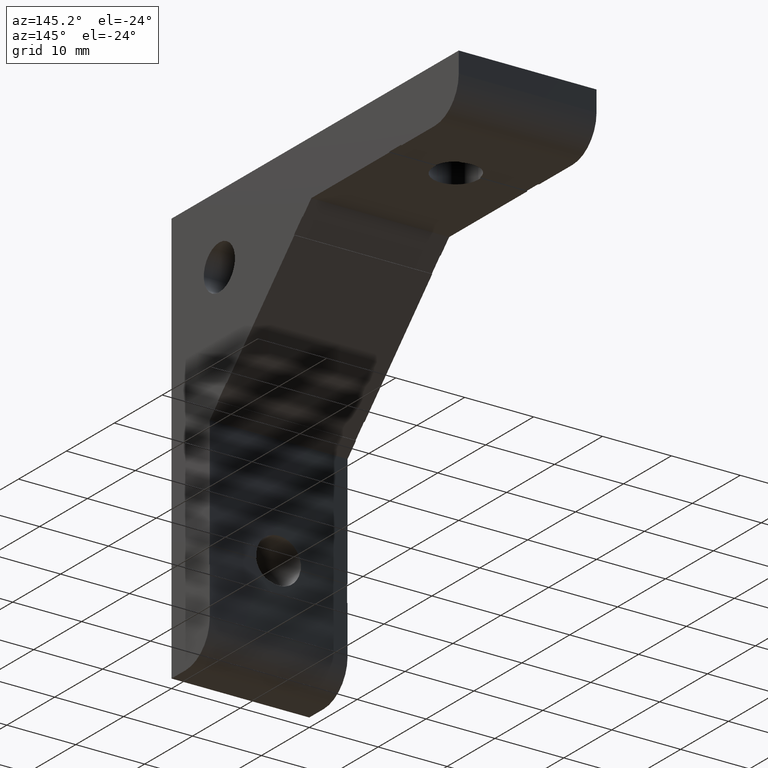
[diagram: clean part render]
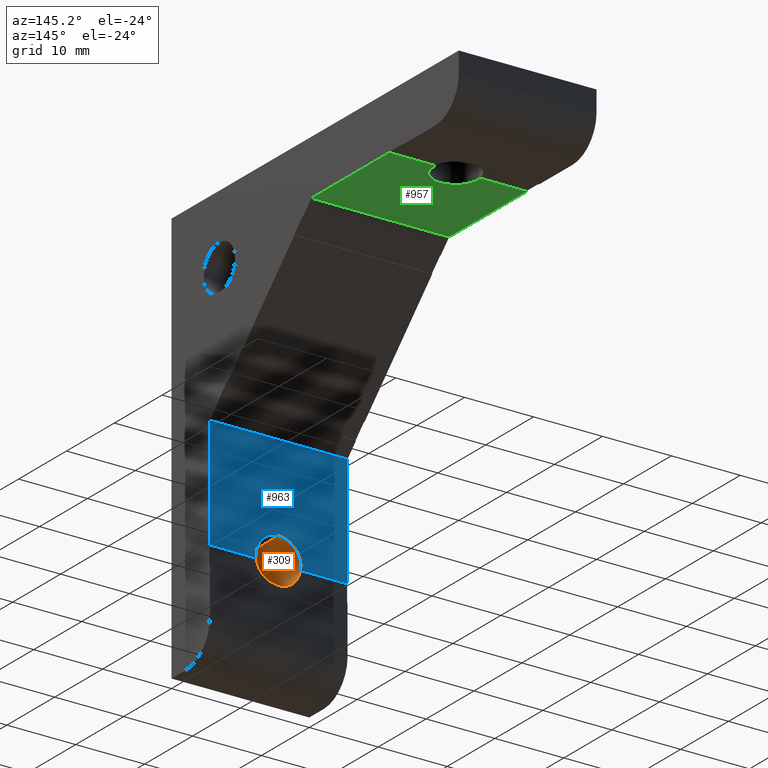
[diagram: same view with three faces highlighted in distinct colors, each labeled with its STEP entity id]
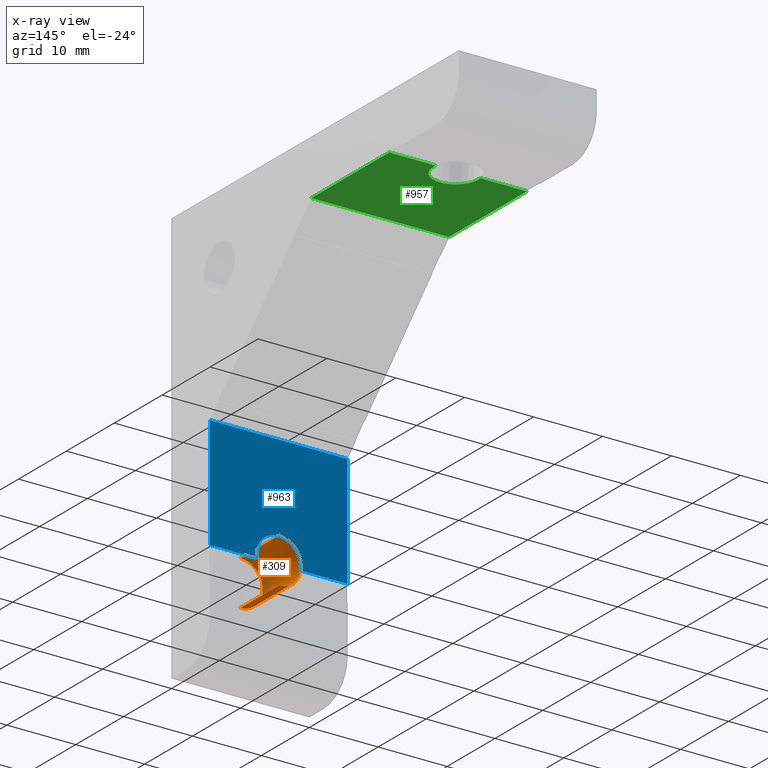
[diagram: x-ray of the same camera — body ghosted, the three highlighted faces saturated]
A machine part, auxiliary view with three faces highlighted in distinct colors.
The next image is the same camera in x-ray (body ghosted, the three faces saturated) — at least one of them is partly hidden behind the body in this view.
Their STEP definitions:

[orange] entity #309 — the highlighted cylindrical surface (edge-blend (fillet) strip) has radius 3.25 mm, axis along (-0, 1, 0).
#3 = EDGE_CURVE ( 'NONE', #907, #911, #822, .T. ) ;
#4 = EDGE_CURVE ( 'NONE', #946, #911, #824, .T. ) ;
#5 = EDGE_CURVE ( 'NONE', #926, #870, #826, .T. ) ;
#6 = EDGE_CURVE ( 'NONE', #870, #946, #825, .T. ) ;
#110 = ORIENTED_EDGE ( 'NONE', *, *, #492, .T. ) ;
#124 = ORIENTED_EDGE ( 'NONE', *, *, #954, .T. ) ;
#125 = ORIENTED_EDGE ( 'NONE', *, *, #953, .T. ) ;
#126 = ORIENTED_EDGE ( 'NONE', *, *, #5, .T. ) ;
#127 = ORIENTED_EDGE ( 'NONE', *, *, #952, .T. ) ;
#128 = ORIENTED_EDGE ( 'NONE', *, *, #4, .T. ) ;
#129 = ORIENTED_EDGE ( 'NONE', *, *, #3, .F. ) ;
#131 = ORIENTED_EDGE ( 'NONE', *, *, #6, .T. ) ;
#148 = CARTESIAN_POINT ( 'NONE',  ( 6.788691855308848700, 7.899999999999999500, -45.49999999984024200 ) ) ;
#149 = CARTESIAN_POINT ( 'NONE',  ( 10.00000000000000000, 8.000000000000000000, -48.24999999999999300 ) ) ;
#155 = CARTESIAN_POINT ( 'NONE',  ( 10.00000000000000000, 0.0000000000000000000, -48.24999999999999300 ) ) ;
#167 = CARTESIAN_POINT ( 'NONE',  ( 10.00000000000000000, 0.0000000000000000000, -41.75000000000000000 ) ) ;
#171 = CARTESIAN_POINT ( 'NONE',  ( 10.00000000000000000, 8.000000000000000000, -41.75000000000000000 ) ) ;
#173 = CARTESIAN_POINT ( 'NONE',  ( 8.750000000434340600, 8.000000000000000000, -48.00000000018096100 ) ) ;
#186 = CARTESIAN_POINT ( 'NONE',  ( 8.750000000434340600, 7.899999999999999500, -48.00000000018096100 ) ) ;
#206 = CARTESIAN_POINT ( 'NONE',  ( 6.788691855308848700, 8.000000000000000000, -45.49999999984024200 ) ) ;
#213 = CARTESIAN_POINT ( 'NONE',  ( 10.00000000000000000, 0.0000000000000000000, -48.24999999999999300 ) ) ;
#214 = DIRECTION ( 'NONE',  ( -0.0000000000000000000, 1.000000000000000000, 0.0000000000000000000 ) ) ;
#215 = CARTESIAN_POINT ( 'NONE',  ( 8.750000000868665100, 3.999999999999999100, -48.00000000036192200 ) ) ;
#216 = DIRECTION ( 'NONE',  ( -0.0000000000000000000, -1.000000000000000000, -0.0000000000000000000 ) ) ;
#217 = CARTESIAN_POINT ( 'NONE',  ( 10.00000000000000000, 8.000000000000000000, -45.00000000000000000 ) ) ;
#218 = DIRECTION ( 'NONE',  ( -0.0000000000000000000, 1.000000000000000000, 0.0000000000000000000 ) ) ;
#219 = DIRECTION ( 'NONE',  ( 0.0000000000000000000, 0.0000000000000000000, 1.000000000000000000 ) ) ;
#309 = ADVANCED_FACE ( 'NONE', ( #1283 ), #1284, .F. ) ;
#416 = CARTESIAN_POINT ( 'NONE',  ( 10.00000000000000000, 0.0000000000000000000, -45.00000000000000000 ) ) ;
#417 = DIRECTION ( 'NONE',  ( 0.0000000000000000000, -1.000000000000000000, -0.0000000000000000000 ) ) ;
#418 = DIRECTION ( 'NONE',  ( 0.0000000000000000000, 0.0000000000000000000, 1.000000000000000000 ) ) ;
#492 = EDGE_CURVE ( 'NONE', #907, #895, #1327, .T. ) ;
#513 = AXIS2_PLACEMENT_3D ( 'NONE', #1274, #1273, #1266 ) ;
#514 = AXIS2_PLACEMENT_3D ( 'NONE', #1251, #1253, #1254 ) ;
#517 = AXIS2_PLACEMENT_3D ( 'NONE', #837, #840, #838 ) ;
#545 = AXIS2_PLACEMENT_3D ( 'NONE', #416, #417, #418 ) ;
#640 = AXIS2_PLACEMENT_3D ( 'NONE', #217, #218, #219 ) ;
#780 = EDGE_LOOP ( 'NONE', ( #110, #127, #124, #125, #126, #131, #128, #129 ) ) ;
#822 = LINE ( 'NONE', #1265, #823 ) ;
#823 = VECTOR ( 'NONE', #1263, 1000.000000000000000 ) ;
#824 = CIRCLE ( 'NONE', #513, 3.249999999999996000 ) ;
#825 = LINE ( 'NONE', #1256, #827 ) ;
#826 = CIRCLE ( 'NONE', #514, 3.249999999999996000 ) ;
#827 = VECTOR ( 'NONE', #1258, 1000.000000000000000 ) ;
#837 = CARTESIAN_POINT ( 'NONE',  ( 10.00000000000000000, 0.0000000000000000000, -45.00000000000000000 ) ) ;
#838 = DIRECTION ( 'NONE',  ( 0.0000000000000000000, 0.0000000000000000000, 1.000000000000000000 ) ) ;
#840 = DIRECTION ( 'NONE',  ( -0.0000000000000000000, 1.000000000000000000, 0.0000000000000000000 ) ) ;
#870 = VERTEX_POINT ( 'NONE', #148 ) ;
#871 = VERTEX_POINT ( 'NONE', #149 ) ;
#895 = VERTEX_POINT ( 'NONE', #155 ) ;
#907 = VERTEX_POINT ( 'NONE', #167 ) ;
#911 = VERTEX_POINT ( 'NONE', #171 ) ;
#913 = VERTEX_POINT ( 'NONE', #173 ) ;
#926 = VERTEX_POINT ( 'NONE', #186 ) ;
#946 = VERTEX_POINT ( 'NONE', #206 ) ;
#952 = EDGE_CURVE ( 'NONE', #895, #871, #1077, .T. ) ;
#953 = EDGE_CURVE ( 'NONE', #913, #926, #1079, .T. ) ;
#954 = EDGE_CURVE ( 'NONE', #871, #913, #1082, .T. ) ;
#1077 = LINE ( 'NONE', #213, #1078 ) ;
#1078 = VECTOR ( 'NONE', #214, 1000.000000000000000 ) ;
#1079 = LINE ( 'NONE', #215, #1080 ) ;
#1080 = VECTOR ( 'NONE', #216, 1000.000000000000000 ) ;
#1082 = CIRCLE ( 'NONE', #640, 3.249999999999996000 ) ;
#1251 = CARTESIAN_POINT ( 'NONE',  ( 10.00000000000000000, 7.899999999999999500, -45.00000000000000000 ) ) ;
#1253 = DIRECTION ( 'NONE',  ( -0.0000000000000000000, 1.000000000000000000, 0.0000000000000000000 ) ) ;
#1254 = DIRECTION ( 'NONE',  ( 0.0000000000000000000, 0.0000000000000000000, 1.000000000000000000 ) ) ;
#1256 = CARTESIAN_POINT ( 'NONE',  ( 6.788691855283975200, 4.000000000000000000, -45.49999999968049000 ) ) ;
#1258 = DIRECTION ( 'NONE',  ( 0.0000000000000000000, 1.000000000000000000, 0.0000000000000000000 ) ) ;
#1263 = DIRECTION ( 'NONE',  ( -0.0000000000000000000, 1.000000000000000000, 0.0000000000000000000 ) ) ;
#1265 = CARTESIAN_POINT ( 'NONE',  ( 10.00000000000000000, 0.0000000000000000000, -41.75000000000000000 ) ) ;
#1266 = DIRECTION ( 'NONE',  ( 0.0000000000000000000, 0.0000000000000000000, 1.000000000000000000 ) ) ;
#1273 = DIRECTION ( 'NONE',  ( -0.0000000000000000000, 1.000000000000000000, 0.0000000000000000000 ) ) ;
#1274 = CARTESIAN_POINT ( 'NONE',  ( 10.00000000000000000, 8.000000000000000000, -45.00000000000000000 ) ) ;
#1283 = FACE_OUTER_BOUND ( 'NONE', #780, .T. ) ;
#1284 = CYLINDRICAL_SURFACE ( 'NONE', #517, 3.249999999999996000 ) ;
#1327 = CIRCLE ( 'NONE', #545, 3.249999999999996000 ) ;

[blue] entity #963 — the highlighted planar face has unit normal (0, -1, 0).
#4 = EDGE_CURVE ( 'NONE', #946, #911, #824, .T. ) ;
#69 = ORIENTED_EDGE ( 'NONE', *, *, #4, .F. ) ;
#70 = ORIENTED_EDGE ( 'NONE', *, *, #568, .F. ) ;
#71 = ORIENTED_EDGE ( 'NONE', *, *, #491, .F. ) ;
#72 = ORIENTED_EDGE ( 'NONE', *, *, #488, .F. ) ;
#73 = ORIENTED_EDGE ( 'NONE', *, *, #594, .T. ) ;
#74 = ORIENTED_EDGE ( 'NONE', *, *, #570, .F. ) ;
#75 = ORIENTED_EDGE ( 'NONE', *, *, #574, .F. ) ;
#166 = CARTESIAN_POINT ( 'NONE',  ( 0.0000000000000000000, 7.999999993333334600, -45.50000000000000700 ) ) ;
#171 = CARTESIAN_POINT ( 'NONE',  ( 10.00000000000000000, 8.000000000000000000, -41.75000000000000000 ) ) ;
#179 = CARTESIAN_POINT ( 'NONE',  ( 13.21130814473605100, 8.000000000000000000, -45.49999999955189600 ) ) ;
#184 = CARTESIAN_POINT ( 'NONE',  ( 20.00000000000000000, 7.999999993333334600, -45.50000000000000700 ) ) ;
#206 = CARTESIAN_POINT ( 'NONE',  ( 6.788691855308848700, 8.000000000000000000, -45.49999999984024200 ) ) ;
#247 = PLANE ( 'NONE',  #648 ) ;
#248 = CARTESIAN_POINT ( 'NONE',  ( 0.0000000000000000000, 8.000000000000000000, -29.21320343600000100 ) ) ;
#249 = DIRECTION ( 'NONE',  ( 0.0000000000000000000, -1.000000000000000000, 0.0000000000000000000 ) ) ;
#250 = DIRECTION ( 'NONE',  ( 0.0000000000000000000, 0.0000000000000000000, -1.000000000000000000 ) ) ;
#258 = CARTESIAN_POINT ( 'NONE',  ( 20.00000000000000400, 7.999999990000000900, -29.21320344600000100 ) ) ;
#259 = CARTESIAN_POINT ( 'NONE',  ( 0.0000000000000000000, 7.999999987999999900, -29.21320343599999700 ) ) ;
#408 = CARTESIAN_POINT ( 'NONE',  ( 10.00000000000000000, 8.000000000000000000, -29.21320343600000100 ) ) ;
#409 = DIRECTION ( 'NONE',  ( -1.000000000000000000, -0.0000000000000000000, -0.0000000000000000000 ) ) ;
#414 = CARTESIAN_POINT ( 'NONE',  ( 0.0000000000000000000, 7.999999980000001900, -30.00000000000000000 ) ) ;
#415 = DIRECTION ( 'NONE',  ( -0.0000000000000000000, -0.0000000000000000000, -1.000000000000000000 ) ) ;
#484 = CARTESIAN_POINT ( 'NONE',  ( 10.00000000000000000, 8.000000000000000000, -45.50000000000000000 ) ) ;
#485 = DIRECTION ( 'NONE',  ( 1.000000000000000000, 0.0000000000000000000, 0.0000000000000000000 ) ) ;
#488 = EDGE_CURVE ( 'NONE', #1264, #1267, #1318, .T. ) ;
#491 = EDGE_CURVE ( 'NONE', #1267, #906, #1324, .T. ) ;
#513 = AXIS2_PLACEMENT_3D ( 'NONE', #1274, #1273, #1266 ) ;
#556 = AXIS2_PLACEMENT_3D ( 'NONE', #1115, #1116, #1117 ) ;
#568 = EDGE_CURVE ( 'NONE', #906, #946, #1390, .T. ) ;
#570 = EDGE_CURVE ( 'NONE', #919, #924, #1395, .T. ) ;
#574 = EDGE_CURVE ( 'NONE', #911, #919, #1403, .T. ) ;
#594 = EDGE_CURVE ( 'NONE', #1264, #924, #977, .T. ) ;
#648 = AXIS2_PLACEMENT_3D ( 'NONE', #248, #249, #250 ) ;
#771 = EDGE_LOOP ( 'NONE', ( #69, #70, #71, #72, #73, #74, #75 ) ) ;
#824 = CIRCLE ( 'NONE', #513, 3.249999999999996000 ) ;
#906 = VERTEX_POINT ( 'NONE', #166 ) ;
#911 = VERTEX_POINT ( 'NONE', #171 ) ;
#919 = VERTEX_POINT ( 'NONE', #179 ) ;
#924 = VERTEX_POINT ( 'NONE', #184 ) ;
#946 = VERTEX_POINT ( 'NONE', #206 ) ;
#963 = ADVANCED_FACE ( 'NONE', ( #1092 ), #247, .F. ) ;
#977 = LINE ( 'NONE', #1161, #979 ) ;
#979 = VECTOR ( 'NONE', #1162, 1000.000000000000000 ) ;
#1092 = FACE_OUTER_BOUND ( 'NONE', #771, .T. ) ;
#1106 = CARTESIAN_POINT ( 'NONE',  ( 10.00000000000000000, 8.000000000000000000, -45.50000000000000000 ) ) ;
#1107 = DIRECTION ( 'NONE',  ( 1.000000000000000000, 0.0000000000000000000, 0.0000000000000000000 ) ) ;
#1115 = CARTESIAN_POINT ( 'NONE',  ( 10.00000000000000000, 8.000000000000000000, -45.00000000000000000 ) ) ;
#1116 = DIRECTION ( 'NONE',  ( -0.0000000000000000000, 1.000000000000000000, 0.0000000000000000000 ) ) ;
#1117 = DIRECTION ( 'NONE',  ( 0.0000000000000000000, 0.0000000000000000000, 1.000000000000000000 ) ) ;
#1161 = CARTESIAN_POINT ( 'NONE',  ( 20.00000000000000000, 7.999999980000001900, -30.00000000000000000 ) ) ;
#1162 = DIRECTION ( 'NONE',  ( -0.0000000000000000000, -0.0000000000000000000, -1.000000000000000000 ) ) ;
#1264 = VERTEX_POINT ( 'NONE', #258 ) ;
#1266 = DIRECTION ( 'NONE',  ( 0.0000000000000000000, 0.0000000000000000000, 1.000000000000000000 ) ) ;
#1267 = VERTEX_POINT ( 'NONE', #259 ) ;
#1273 = DIRECTION ( 'NONE',  ( -0.0000000000000000000, 1.000000000000000000, 0.0000000000000000000 ) ) ;
#1274 = CARTESIAN_POINT ( 'NONE',  ( 10.00000000000000000, 8.000000000000000000, -45.00000000000000000 ) ) ;
#1318 = LINE ( 'NONE', #408, #1319 ) ;
#1319 = VECTOR ( 'NONE', #409, 1000.000000000000000 ) ;
#1324 = LINE ( 'NONE', #414, #1325 ) ;
#1325 = VECTOR ( 'NONE', #415, 1000.000000000000000 ) ;
#1390 = LINE ( 'NONE', #484, #1391 ) ;
#1391 = VECTOR ( 'NONE', #485, 1000.000000000000000 ) ;
#1395 = LINE ( 'NONE', #1106, #1396 ) ;
#1396 = VECTOR ( 'NONE', #1107, 1000.000000000000000 ) ;
#1403 = CIRCLE ( 'NONE', #556, 3.249999999999996000 ) ;

[green] entity #957 — the highlighted planar face has unit normal (-0, 0, 1).
#25 = ORIENTED_EDGE ( 'NONE', *, *, #504, .F. ) ;
#26 = ORIENTED_EDGE ( 'NONE', *, *, #620, .F. ) ;
#27 = ORIENTED_EDGE ( 'NONE', *, *, #614, .F. ) ;
#28 = ORIENTED_EDGE ( 'NONE', *, *, #611, .F. ) ;
#29 = ORIENTED_EDGE ( 'NONE', *, *, #509, .F. ) ;
#30 = ORIENTED_EDGE ( 'NONE', *, *, #512, .F. ) ;
#31 = ORIENTED_EDGE ( 'NONE', *, *, #505, .F. ) ;
#32 = ORIENTED_EDGE ( 'NONE', *, *, #498, .F. ) ;
#145 = CARTESIAN_POINT ( 'NONE',  ( 0.0000000000000000000, 29.21320342800000300, -8.000000000000000000 ) ) ;
#150 = CARTESIAN_POINT ( 'NONE',  ( 20.00000000000000400, 29.21320343600000100, -8.000000000000000000 ) ) ;
#156 = CARTESIAN_POINT ( 'NONE',  ( 0.0000000000000000000, 45.50000000000000700, -8.000000000000000000 ) ) ;
#160 = CARTESIAN_POINT ( 'NONE',  ( 6.749999999999997300, 45.00000000000000000, -8.000000000000000000 ) ) ;
#163 = CARTESIAN_POINT ( 'NONE',  ( 6.788691855166858200, 45.50000000000000000, -8.000000000000000000 ) ) ;
#189 = CARTESIAN_POINT ( 'NONE',  ( 13.21130814483314200, 45.50000000000000000, -8.000000000000000000 ) ) ;
#208 = CARTESIAN_POINT ( 'NONE',  ( 13.25000000000000400, 45.00000000000000000, -8.000000000000000000 ) ) ;
#228 = PLANE ( 'NONE',  #643 ) ;
#229 = CARTESIAN_POINT ( 'NONE',  ( 0.0000000000000000000, 45.50000000000000000, -8.000000000000000000 ) ) ;
#230 = DIRECTION ( 'NONE',  ( -0.0000000000000000000, 0.0000000000000000000, 1.000000000000000000 ) ) ;
#231 = DIRECTION ( 'NONE',  ( 0.0000000000000000000, -1.000000000000000000, 0.0000000000000000000 ) ) ;
#255 = CARTESIAN_POINT ( 'NONE',  ( 20.00000000000000000, 45.50000000000000700, -8.000000000000000000 ) ) ;
#431 = CARTESIAN_POINT ( 'NONE',  ( 10.00000000000000000, 45.00000000000000000, -8.000000000000000000 ) ) ;
#432 = DIRECTION ( 'NONE',  ( 0.0000000000000000000, 0.0000000000000000000, -1.000000000000000000 ) ) ;
#433 = DIRECTION ( 'NONE',  ( -1.000000000000000000, 0.0000000000000000000, 0.0000000000000000000 ) ) ;
#446 = CARTESIAN_POINT ( 'NONE',  ( 10.00000000000000000, 45.00000000000000000, -8.000000000000000000 ) ) ;
#447 = DIRECTION ( 'NONE',  ( 0.0000000000000000000, 0.0000000000000000000, -1.000000000000000000 ) ) ;
#448 = DIRECTION ( 'NONE',  ( -1.000000000000000000, 0.0000000000000000000, 0.0000000000000000000 ) ) ;
#449 = CARTESIAN_POINT ( 'NONE',  ( 10.00000000000000000, 45.00000000000000000, -8.000000000000000000 ) ) ;
#450 = DIRECTION ( 'NONE',  ( 0.0000000000000000000, 0.0000000000000000000, -1.000000000000000000 ) ) ;
#451 = DIRECTION ( 'NONE',  ( -1.000000000000000000, 0.0000000000000000000, 0.0000000000000000000 ) ) ;
#460 = CARTESIAN_POINT ( 'NONE',  ( 0.0000000000000000000, 37.35660171799999300, -8.000000000000000000 ) ) ;
#461 = DIRECTION ( 'NONE',  ( 0.0000000000000000000, -1.000000000000000000, 0.0000000000000000000 ) ) ;
#466 = CARTESIAN_POINT ( 'NONE',  ( 10.00000000000000000, 45.50000000000000000, -8.000000000000000000 ) ) ;
#467 = DIRECTION ( 'NONE',  ( -1.000000000000000000, -0.0000000000000000000, -0.0000000000000000000 ) ) ;
#498 = EDGE_CURVE ( 'NONE', #948, #900, #1335, .T. ) ;
#504 = EDGE_CURVE ( 'NONE', #929, #948, #1350, .T. ) ;
#505 = EDGE_CURVE ( 'NONE', #900, #903, #1351, .T. ) ;
#509 = EDGE_CURVE ( 'NONE', #896, #867, #1357, .T. ) ;
#512 = EDGE_CURVE ( 'NONE', #903, #896, #1367, .T. ) ;
#548 = AXIS2_PLACEMENT_3D ( 'NONE', #431, #432, #433 ) ;
#551 = AXIS2_PLACEMENT_3D ( 'NONE', #446, #447, #448 ) ;
#552 = AXIS2_PLACEMENT_3D ( 'NONE', #449, #450, #451 ) ;
#611 = EDGE_CURVE ( 'NONE', #867, #872, #1015, .T. ) ;
#614 = EDGE_CURVE ( 'NONE', #872, #1255, #1023, .T. ) ;
#620 = EDGE_CURVE ( 'NONE', #1255, #929, #1036, .T. ) ;
#643 = AXIS2_PLACEMENT_3D ( 'NONE', #229, #230, #231 ) ;
#756 = EDGE_LOOP ( 'NONE', ( #25, #26, #27, #28, #29, #30, #31, #32 ) ) ;
#867 = VERTEX_POINT ( 'NONE', #145 ) ;
#872 = VERTEX_POINT ( 'NONE', #150 ) ;
#896 = VERTEX_POINT ( 'NONE', #156 ) ;
#900 = VERTEX_POINT ( 'NONE', #160 ) ;
#903 = VERTEX_POINT ( 'NONE', #163 ) ;
#929 = VERTEX_POINT ( 'NONE', #189 ) ;
#948 = VERTEX_POINT ( 'NONE', #208 ) ;
#957 = ADVANCED_FACE ( 'NONE', ( #1086 ), #228, .F. ) ;
#1015 = LINE ( 'NONE', #1198, #1016 ) ;
#1016 = VECTOR ( 'NONE', #1199, 1000.000000000000000 ) ;
#1023 = LINE ( 'NONE', #1204, #1024 ) ;
#1024 = VECTOR ( 'NONE', #1205, 1000.000000000000000 ) ;
#1036 = LINE ( 'NONE', #1216, #1037 ) ;
#1037 = VECTOR ( 'NONE', #1217, 1000.000000000000000 ) ;
#1086 = FACE_OUTER_BOUND ( 'NONE', #756, .T. ) ;
#1198 = CARTESIAN_POINT ( 'NONE',  ( 10.00000000000000000, 29.21320343600000100, -8.000000000000000000 ) ) ;
#1199 = DIRECTION ( 'NONE',  ( 1.000000000000000000, 0.0000000000000000000, 0.0000000000000000000 ) ) ;
#1204 = CARTESIAN_POINT ( 'NONE',  ( 20.00000000000000000, 37.35660171799999300, -8.000000000000000000 ) ) ;
#1205 = DIRECTION ( 'NONE',  ( -0.0000000000000000000, 1.000000000000000000, -0.0000000000000000000 ) ) ;
#1216 = CARTESIAN_POINT ( 'NONE',  ( 10.00000000000000000, 45.50000000000000000, -8.000000000000000000 ) ) ;
#1217 = DIRECTION ( 'NONE',  ( -1.000000000000000000, -0.0000000000000000000, -0.0000000000000000000 ) ) ;
#1255 = VERTEX_POINT ( 'NONE', #255 ) ;
#1335 = CIRCLE ( 'NONE', #548, 3.250000000000002700 ) ;
#1350 = CIRCLE ( 'NONE', #551, 3.250000000000002700 ) ;
#1351 = CIRCLE ( 'NONE', #552, 3.250000000000002700 ) ;
#1357 = LINE ( 'NONE', #460, #1361 ) ;
#1361 = VECTOR ( 'NONE', #461, 1000.000000000000000 ) ;
#1367 = LINE ( 'NONE', #466, #1369 ) ;
#1369 = VECTOR ( 'NONE', #467, 1000.000000000000000 ) ;